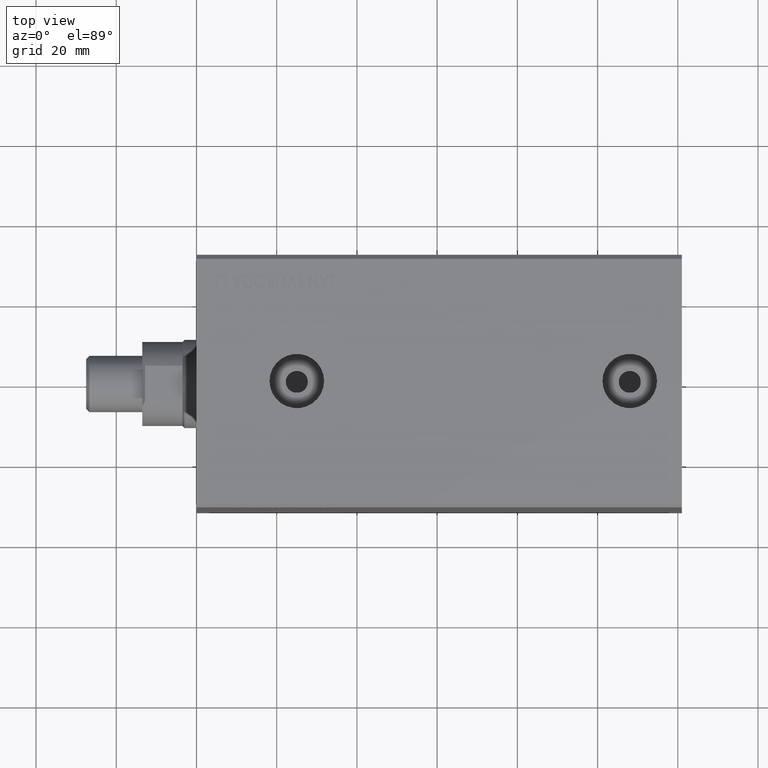
[diagram: clean part render]
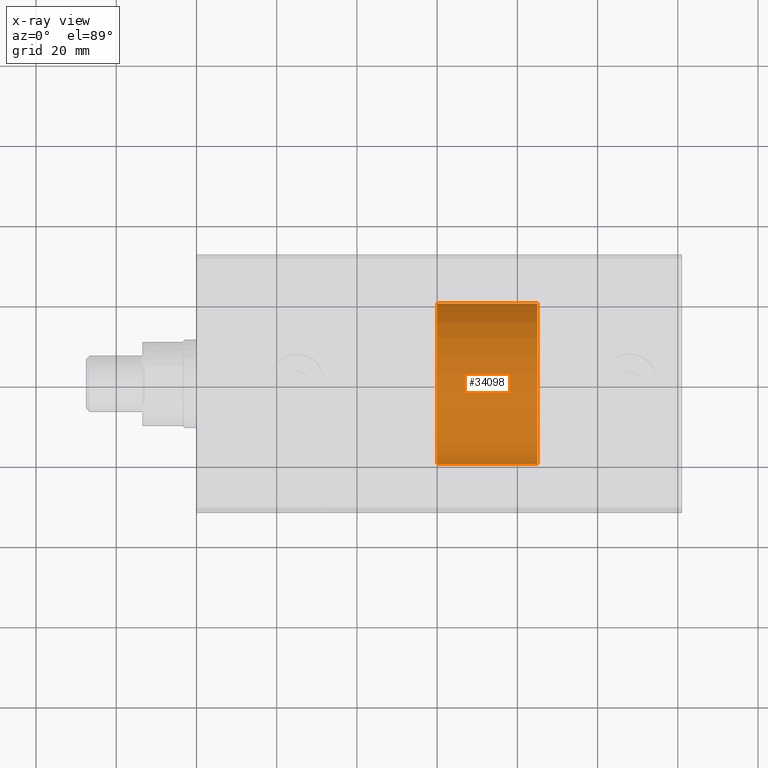
[diagram: x-ray — body ghosted, one internal face saturated and labeled with its STEP entity id]
A machine part, top view, then the same camera in x-ray: the body is ghosted and one INTERNAL B-rep face — a face not visible from any outside direction — is saturated and labeled: STEP entity #34098.
In plain terms, the highlighted cylindrical surface (partial cylindrical patch) has radius 20 mm, axis along (-1, -0, 0).
Its self-contained STEP definition (entity closure, byte-faithful):
#1178 = EDGE_CURVE ( 'NONE', #7158, #3421, #12351, .T. ) ;
#3421 = VERTEX_POINT ( 'NONE', #42585 ) ;
#4109 = EDGE_CURVE ( 'NONE', #7158, #22191, #38090, .T. ) ;
#4292 = EDGE_CURVE ( 'NONE', #22191, #36346, #33219, .T. ) ;
#4338 = DIRECTION ( 'NONE',  ( 0.000000000000000000, -1.000000000000000000, -1.734723475976807094E-16 ) ) ;
#4486 = VECTOR ( 'NONE', #4826, 1000.000000000000000 ) ;
#4826 = DIRECTION ( 'NONE',  ( -0.000000000000000000, -1.606696118880538499E-16, 1.000000000000000000 ) ) ;
#6771 = AXIS2_PLACEMENT_3D ( 'NONE', #40585, #9343, #23245 ) ;
#7158 = VERTEX_POINT ( 'NONE', #40213 ) ;
#9343 = DIRECTION ( 'NONE',  ( -0.000000000000000000, -1.606696118880538499E-16, 1.000000000000000000 ) ) ;
#11337 = ORIENTED_EDGE ( 'NONE', *, *, #17951, .F. ) ;
#11566 = CARTESIAN_POINT ( 'NONE',  ( 2.449293598294706119E-15, 19.99999999999997868, 98.50000000000000000 ) ) ;
#12351 = LINE ( 'NONE', #18729, #4486 ) ;
#13677 = CYLINDRICAL_SURFACE ( 'NONE', #26015, 19.99999999999999645 ) ;
#13774 = ORIENTED_EDGE ( 'NONE', *, *, #4109, .T. ) ;
#14928 = CARTESIAN_POINT ( 'NONE',  ( 2.449293598294706119E-15, 19.99999999999999645, 24.99999999999999645 ) ) ;
#17213 = ORIENTED_EDGE ( 'NONE', *, *, #4292, .T. ) ;
#17951 = EDGE_CURVE ( 'NONE', #3421, #36346, #36690, .T. ) ;
#18729 = CARTESIAN_POINT ( 'NONE',  ( 0.000000000000000000, -20.00000000000001421, 98.50000000000000000 ) ) ;
#19820 = EDGE_LOOP ( 'NONE', ( #13774, #17213, #11337, #28497 ) ) ;
#19898 = VECTOR ( 'NONE', #36641, 1000.000000000000000 ) ;
#22191 = VERTEX_POINT ( 'NONE', #27571 ) ;
#22753 = AXIS2_PLACEMENT_3D ( 'NONE', #35563, #34887, #4338 ) ;
#23245 = DIRECTION ( 'NONE',  ( 0.000000000000000000, -1.000000000000000000, -1.606696118880538499E-16 ) ) ;
#26015 = AXIS2_PLACEMENT_3D ( 'NONE', #27565, #40835, #27775 ) ;
#27565 = CARTESIAN_POINT ( 'NONE',  ( 0.000000000000000000, -1.582595677097330397E-14, 98.50000000000000000 ) ) ;
#27571 = CARTESIAN_POINT ( 'NONE',  ( 2.449293598294706513E-15, 20.00000000000000000, 3.213392237761077787E-15 ) ) ;
#27775 = DIRECTION ( 'NONE',  ( 0.000000000000000000, -1.000000000000000000, 0.000000000000000000 ) ) ;
#28497 = ORIENTED_EDGE ( 'NONE', *, *, #1178, .F. ) ;
#29648 = FACE_OUTER_BOUND ( 'NONE', #19820, .T. ) ;
#33219 = LINE ( 'NONE', #11566, #19898 ) ;
#34098 = ADVANCED_FACE ( 'NONE', ( #29648 ), #13677, .T. ) ;
#34887 = DIRECTION ( 'NONE',  ( -0.000000000000000000, -1.606696118880538499E-16, 1.000000000000000000 ) ) ;
#35563 = CARTESIAN_POINT ( 'NONE',  ( 0.000000000000000000, -4.016740297201344571E-15, 24.99999999999999289 ) ) ;
#36346 = VERTEX_POINT ( 'NONE', #14928 ) ;
#36641 = DIRECTION ( 'NONE',  ( -0.000000000000000000, -1.606696118880538499E-16, 1.000000000000000000 ) ) ;
#36690 = CIRCLE ( 'NONE', #22753, 20.00000000000000000 ) ;
#38090 = CIRCLE ( 'NONE', #6771, 20.00000000000000000 ) ;
#40213 = CARTESIAN_POINT ( 'NONE',  ( 0.000000000000000000, -20.00000000000000000, -3.213392237761076998E-15 ) ) ;
#40585 = CARTESIAN_POINT ( 'NONE',  ( 0.000000000000000000, 0.000000000000000000, 0.000000000000000000 ) ) ;
#40835 = DIRECTION ( 'NONE',  ( -0.000000000000000000, -1.606696118880538499E-16, 1.000000000000000000 ) ) ;
#42585 = CARTESIAN_POINT ( 'NONE',  ( 0.000000000000000000, -20.00000000000000355, 24.99999999999998934 ) ) ;